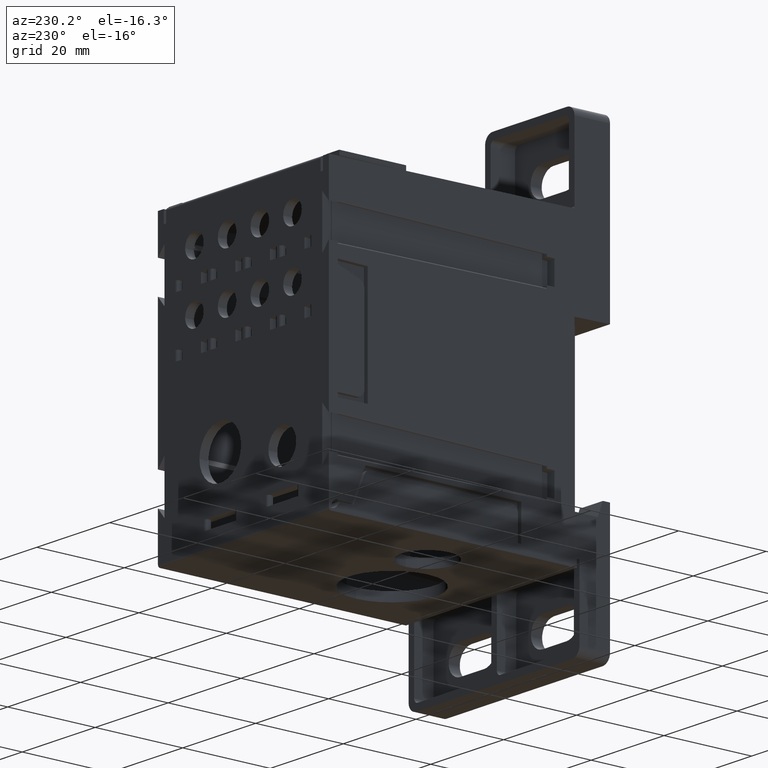
[diagram: clean part render]
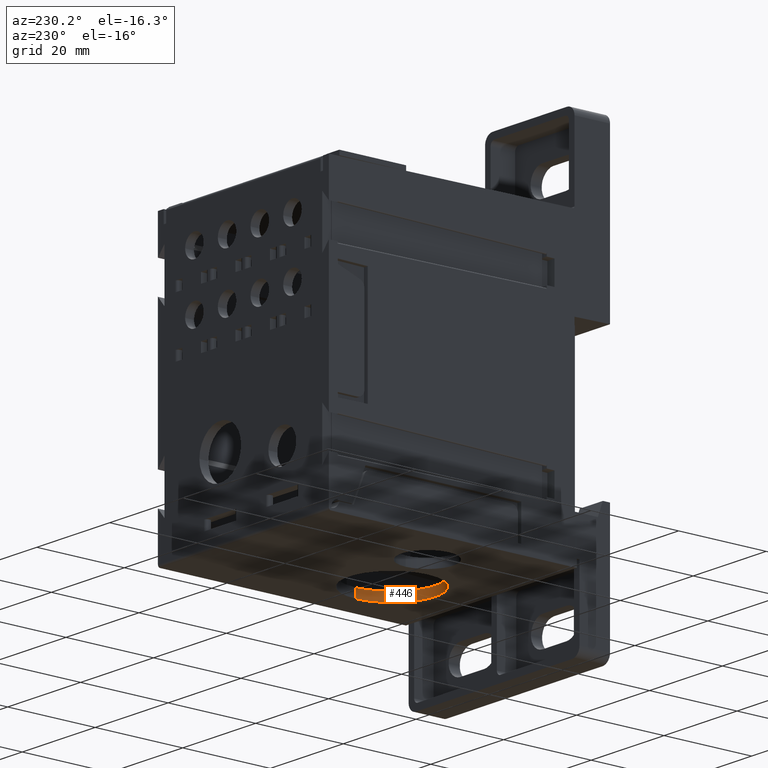
[diagram: same view with one face highlighted and labeled with its STEP entity id]
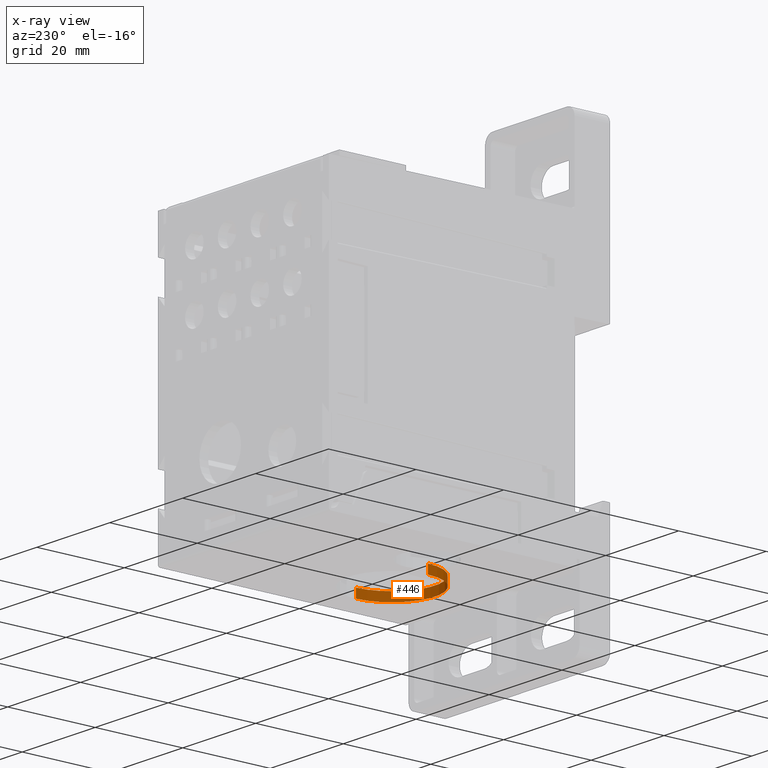
[diagram: x-ray of the same camera — body ghosted, the highlighted face saturated]
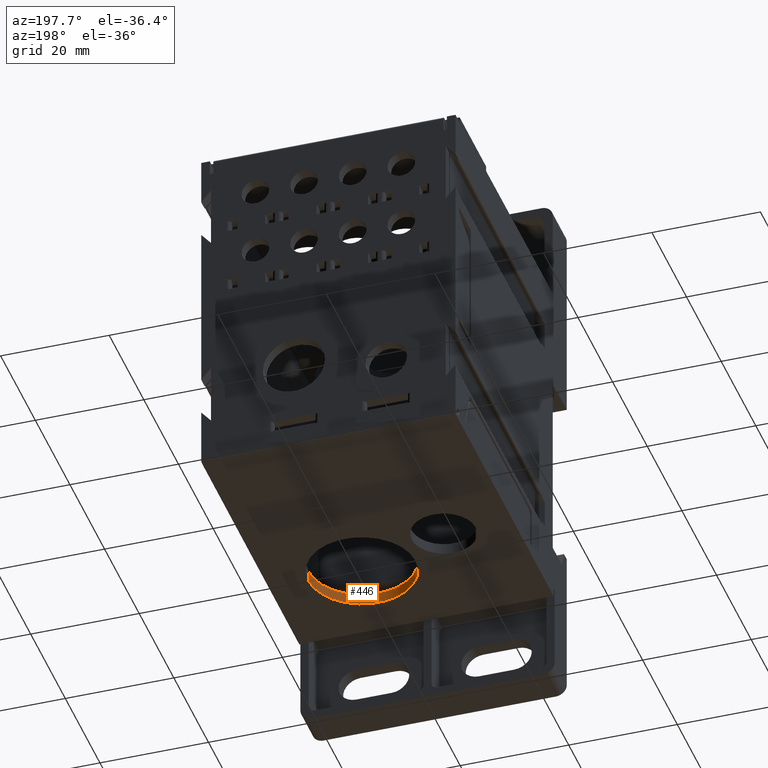
[diagram: same view with one face highlighted and labeled with its STEP entity id]
A machine part, auxiliary view. The second image highlights one B-rep face of the part: STEP entity #446.
The next image is the same camera in x-ray: the body ghosted, the highlighted face saturated — about 0% of this face is hidden behind the body in this view.
A second angle (auxiliary view) of the same face is appended — the face is thin or edge-on in the first view.
In plain terms, the highlighted cylindrical surface (partial cylindrical patch) has radius 9.8425 mm, axis along (-0, 0, 1).
Its self-contained STEP definition (entity closure, byte-faithful):
#446 = ADVANCED_FACE ( 'NONE', ( #12861 ), #12888, .F. ) ;
#1935 = EDGE_LOOP ( 'NONE', ( #30250, #30251, #30252, #30253 ) ) ;
#6047 = CIRCLE ( 'NONE', #19494, 0.3875000000000000100 ) ;
#6079 = LINE ( 'NONE', #9179, #6082 ) ;
#6081 = CIRCLE ( 'NONE', #19495, 0.3875000000000000100 ) ;
#6082 = VECTOR ( 'NONE', #9180, 39.37007874015748100 ) ;
#6084 = LINE ( 'NONE', #9181, #6086 ) ;
#6086 = VECTOR ( 'NONE', #9182, 39.37007874015748100 ) ;
#9179 = CARTESIAN_POINT ( 'NONE',  ( -0.1375000000000037600, 0.6660000000000059200, -1.325221204703001000 ) ) ;
#9180 = DIRECTION ( 'NONE',  ( -1.734723475976806200E-017, 6.733231641510056000E-033, 1.000000000000000000 ) ) ;
#9181 = CARTESIAN_POINT ( 'NONE',  ( 0.6374999999999962900, 0.6660000000000061400, -1.325221204703001000 ) ) ;
#9182 = DIRECTION ( 'NONE',  ( -1.734723475976806200E-017, 6.733231641510056000E-033, 1.000000000000000000 ) ) ;
#9183 = CARTESIAN_POINT ( 'NONE',  ( 0.2499999999999962800, 0.6660000000000059200, -1.325221204703001000 ) ) ;
#9184 = DIRECTION ( 'NONE',  ( -1.734723475976806200E-017, 6.733231641510056000E-033, 1.000000000000000000 ) ) ;
#9185 = DIRECTION ( 'NONE',  ( 1.000000000000000000, 3.524965153115178100E-016, 0.0000000000000000000 ) ) ;
#9186 = CARTESIAN_POINT ( 'NONE',  ( 0.2499999999999962800, 0.6660000000000059200, -1.245221204703000700 ) ) ;
#9187 = DIRECTION ( 'NONE',  ( -1.734723475976806200E-017, 6.733231641510056000E-033, 1.000000000000000000 ) ) ;
#9188 = DIRECTION ( 'NONE',  ( 1.000000000000000000, 3.524965153115178100E-016, 0.0000000000000000000 ) ) ;
#11372 = DIRECTION ( 'NONE',  ( -1.734723475976806200E-017, 6.733231641510056000E-033, 1.000000000000000000 ) ) ;
#11392 = CARTESIAN_POINT ( 'NONE',  ( 0.2499999999999962800, 0.6660000000000059200, -1.325221204703001000 ) ) ;
#11409 = DIRECTION ( 'NONE',  ( 1.000000000000000000, 3.524965153115178100E-016, 0.0000000000000000000 ) ) ;
#11879 = EDGE_CURVE ( 'NONE', #25220, #25282, #6079, .T. ) ;
#11880 = EDGE_CURVE ( 'NONE', #25220, #25224, #6047, .T. ) ;
#11881 = EDGE_CURVE ( 'NONE', #25282, #25288, #6081, .T. ) ;
#11882 = EDGE_CURVE ( 'NONE', #25224, #25288, #6084, .T. ) ;
#12861 = FACE_OUTER_BOUND ( 'NONE', #1935, .T. ) ;
#12888 = CYLINDRICAL_SURFACE ( 'NONE', #18788, 0.3875000000000000100 ) ;
#14087 = CARTESIAN_POINT ( 'NONE',  ( -0.1375000000000037600, 0.6660000000000059200, -1.325221204703001000 ) ) ;
#14091 = CARTESIAN_POINT ( 'NONE',  ( 0.6374999999999962900, 0.6660000000000061400, -1.325221204703001000 ) ) ;
#14149 = CARTESIAN_POINT ( 'NONE',  ( -0.1375000000000037600, 0.6660000000000059200, -1.245221204703000700 ) ) ;
#14155 = CARTESIAN_POINT ( 'NONE',  ( 0.6374999999999962900, 0.6660000000000061400, -1.245221204703000700 ) ) ;
#18788 = AXIS2_PLACEMENT_3D ( 'NONE', #11392, #11372, #11409 ) ;
#19494 = AXIS2_PLACEMENT_3D ( 'NONE', #9183, #9184, #9185 ) ;
#19495 = AXIS2_PLACEMENT_3D ( 'NONE', #9186, #9187, #9188 ) ;
#25220 = VERTEX_POINT ( 'NONE', #14087 ) ;
#25224 = VERTEX_POINT ( 'NONE', #14091 ) ;
#25282 = VERTEX_POINT ( 'NONE', #14149 ) ;
#25288 = VERTEX_POINT ( 'NONE', #14155 ) ;
#30250 = ORIENTED_EDGE ( 'NONE', *, *, #11880, .F. ) ;
#30251 = ORIENTED_EDGE ( 'NONE', *, *, #11879, .T. ) ;
#30252 = ORIENTED_EDGE ( 'NONE', *, *, #11881, .T. ) ;
#30253 = ORIENTED_EDGE ( 'NONE', *, *, #11882, .F. ) ;